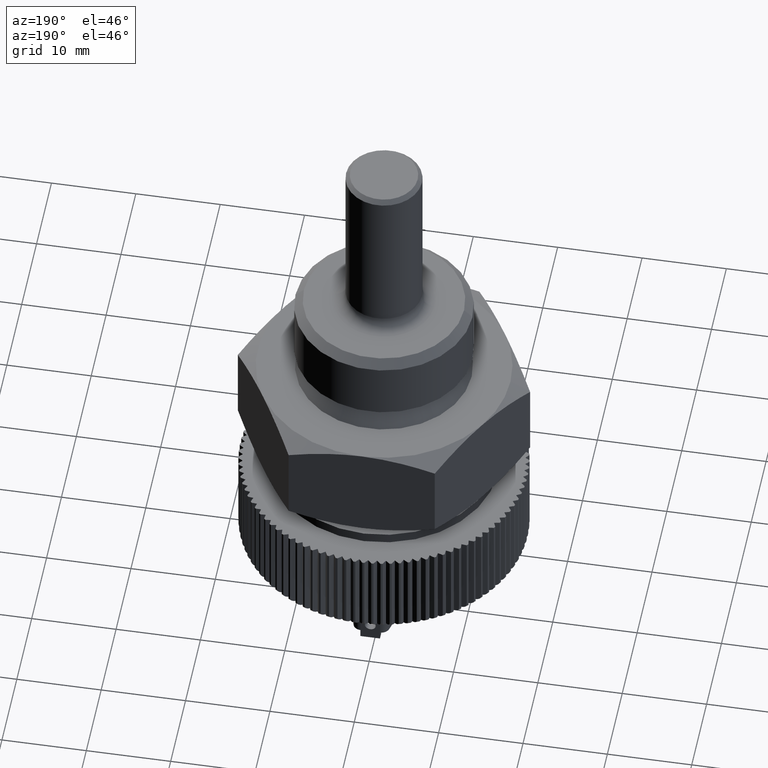
[diagram: clean part render]
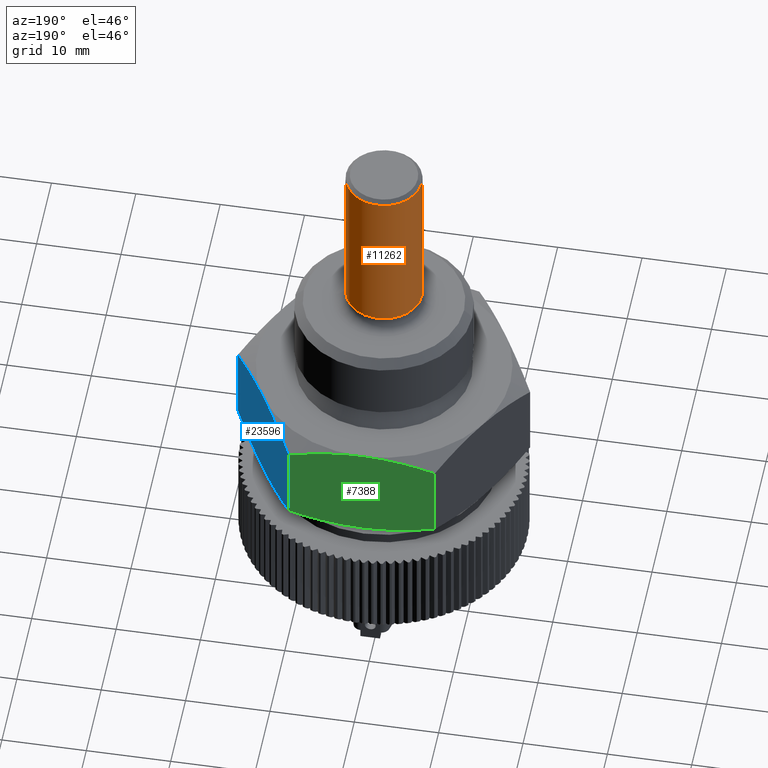
[diagram: same view with three faces highlighted in distinct colors, each labeled with its STEP entity id]
A machine part, auxiliary view with three faces highlighted in distinct colors.
Their STEP definitions:

[orange] entity #11262 — the highlighted cylindrical surface (partial cylindrical patch) has radius 4.5 mm, axis along (-0, -0, 1).
#998 = DIRECTION ( 'NONE',  ( -0.0000000000000000000, -0.0000000000000000000, 1.000000000000000000 ) ) ;
#3238 = DIRECTION ( 'NONE',  ( -0.0000000000000000000, -0.0000000000000000000, 1.000000000000000000 ) ) ;
#3300 = VERTEX_POINT ( 'NONE', #24656 ) ;
#3536 = DIRECTION ( 'NONE',  ( 0.0000000000000000000, 0.0000000000000000000, -1.000000000000000000 ) ) ;
#3890 = ORIENTED_EDGE ( 'NONE', *, *, #8098, .F. ) ;
#7951 = CYLINDRICAL_SURFACE ( 'NONE', #30838, 4.500000000000000888 ) ;
#8098 = EDGE_CURVE ( 'NONE', #30376, #8715, #8416, .T. ) ;
#8155 = ORIENTED_EDGE ( 'NONE', *, *, #18407, .T. ) ;
#8416 = LINE ( 'NONE', #13999, #32135 ) ;
#8431 = AXIS2_PLACEMENT_3D ( 'NONE', #26323, #13055, #15826 ) ;
#8715 = VERTEX_POINT ( 'NONE', #23951 ) ;
#9145 = CARTESIAN_POINT ( 'NONE',  ( 0.0000000000000000000, 0.0000000000000000000, 0.0000000000000000000 ) ) ;
#9388 = ORIENTED_EDGE ( 'NONE', *, *, #23651, .T. ) ;
#10593 = DIRECTION ( 'NONE',  ( -0.0000000000000000000, -0.0000000000000000000, 1.000000000000000000 ) ) ;
#11042 = EDGE_LOOP ( 'NONE', ( #9388, #8155, #30794, #3890 ) ) ;
#11262 = ADVANCED_FACE ( 'NONE', ( #31824 ), #7951, .T. ) ;
#12346 = VECTOR ( 'NONE', #10593, 1000.000000000000000 ) ;
#13055 = DIRECTION ( 'NONE',  ( -0.0000000000000000000, -0.0000000000000000000, 1.000000000000000000 ) ) ;
#13999 = CARTESIAN_POINT ( 'NONE',  ( 4.500000000000000888, 0.0000000000000000000, 0.0000000000000000000 ) ) ;
#15826 = DIRECTION ( 'NONE',  ( -1.000000000000000000, 0.0000000000000000000, 0.0000000000000000000 ) ) ;
#16899 = AXIS2_PLACEMENT_3D ( 'NONE', #30161, #3536, #33555 ) ;
#18407 = EDGE_CURVE ( 'NONE', #3300, #30653, #29245, .T. ) ;
#20760 = CIRCLE ( 'NONE', #16899, 4.500000000000000888 ) ;
#23449 = CIRCLE ( 'NONE', #8431, 4.500000000000000888 ) ;
#23651 = EDGE_CURVE ( 'NONE', #30376, #3300, #23449, .T. ) ;
#23951 = CARTESIAN_POINT ( 'NONE',  ( 4.500000000000000888, 5.510910596163090542E-16, 31.50000000000000711 ) ) ;
#24656 = CARTESIAN_POINT ( 'NONE',  ( -4.500000000000000888, 5.510910596163089556E-16, 12.50000000000000000 ) ) ;
#26323 = CARTESIAN_POINT ( 'NONE',  ( 0.0000000000000000000, 0.0000000000000000000, 12.50000000000000000 ) ) ;
#27635 = CARTESIAN_POINT ( 'NONE',  ( -4.500000000000000888, 5.510910596163089556E-16, 0.0000000000000000000 ) ) ;
#28082 = CARTESIAN_POINT ( 'NONE',  ( 4.500000000000000888, 0.0000000000000000000, 12.50000000000000000 ) ) ;
#29245 = LINE ( 'NONE', #27635, #12346 ) ;
#29661 = EDGE_CURVE ( 'NONE', #30653, #8715, #20760, .T. ) ;
#30161 = CARTESIAN_POINT ( 'NONE',  ( 0.0000000000000000000, 0.0000000000000000000, 31.50000000000000711 ) ) ;
#30198 = CARTESIAN_POINT ( 'NONE',  ( -4.500000000000000888, 0.0000000000000000000, 31.50000000000000711 ) ) ;
#30240 = DIRECTION ( 'NONE',  ( 1.000000000000000000, 0.0000000000000000000, 0.0000000000000000000 ) ) ;
#30376 = VERTEX_POINT ( 'NONE', #28082 ) ;
#30653 = VERTEX_POINT ( 'NONE', #30198 ) ;
#30794 = ORIENTED_EDGE ( 'NONE', *, *, #29661, .T. ) ;
#30838 = AXIS2_PLACEMENT_3D ( 'NONE', #9145, #998, #30240 ) ;
#31824 = FACE_OUTER_BOUND ( 'NONE', #11042, .T. ) ;
#32135 = VECTOR ( 'NONE', #3238, 1000.000000000000000 ) ;
#33555 = DIRECTION ( 'NONE',  ( 1.000000000000000000, 0.0000000000000000000, 0.0000000000000000000 ) ) ;

[blue] entity #23596 — the highlighted planar face has unit normal (0.866, 0.5, -0).
#50 = DIRECTION ( 'NONE',  ( -0.5000000000000003331, 0.8660254037844384856, 0.0000000000000000000 ) ) ;
#293 = CARTESIAN_POINT ( 'NONE',  ( 12.99038105676657473, 7.500000000000003553, -12.00000000000000178 ) ) ;
#420 = VECTOR ( 'NONE', #436, 1000.000000000000000 ) ;
#436 = DIRECTION ( 'NONE',  ( 0.0000000000000000000, 0.0000000000000000000, 1.000000000000000000 ) ) ;
#540 = DIRECTION ( 'NONE',  ( 0.8660254037844384856, 0.5000000000000003331, -0.0000000000000000000 ) ) ;
#561 = EDGE_CURVE ( 'NONE', #13618, #11846, #27135, .T. ) ;
#780 = CARTESIAN_POINT ( 'NONE',  ( 10.07931531348310727, 12.54211377154021889, -11.40496726926197368 ) ) ;
#1277 = B_SPLINE_CURVE_WITH_KNOTS ( 'NONE', 3,
 ( #4304, #14885, #25524, #2716, #15565, #293 ),
 .UNSPECIFIED., .F., .F.,
 ( 4, 2, 4 ),
 ( 2.380728851881346700E-07, 0.004381617344479428466, 0.008762996616073669837 ),
 .UNSPECIFIED. ) ;
#1645 = CARTESIAN_POINT ( 'NONE',  ( 8.660254037844376640, 15.00000000000000355, -1.339745962155602488 ) ) ;
#2716 = CARTESIAN_POINT ( 'NONE',  ( 14.45666067663406373, 4.960329200286731854, -11.87231511594120370 ) ) ;
#3044 = LINE ( 'NONE', #13637, #420 ) ;
#3159 = CARTESIAN_POINT ( 'NONE',  ( 17.32050807568877460, -3.467220923852814603E-15, -21.00000000000000000 ) ) ;
#3391 = CARTESIAN_POINT ( 'NONE',  ( 12.62289781509837105, 8.136499645499435829, -12.00000000000001243 ) ) ;
#4065 = ORIENTED_EDGE ( 'NONE', *, *, #14032, .T. ) ;
#4304 = CARTESIAN_POINT ( 'NONE',  ( 17.32050807568877460, -3.518396117943697230E-15, -10.66025403784440506 ) ) ;
#5821 = CARTESIAN_POINT ( 'NONE',  ( 8.660254037844378416, 15.00000000000000355, -10.66025403784440684 ) ) ;
#5971 = CARTESIAN_POINT ( 'NONE',  ( 8.660254037844376640, 15.00000000000000355, -1.339745962155602488 ) ) ;
#6660 = EDGE_LOOP ( 'NONE', ( #30791, #17007, #9876, #14820, #4065, #22577 ) ) ;
#7888 = CARTESIAN_POINT ( 'NONE',  ( 17.32050807568877460, -3.380393913260085011E-15, -1.339745962155604042 ) ) ;
#7941 = CARTESIAN_POINT ( 'NONE',  ( 16.61392498976816867, 1.223837804583287614, -0.9318000272943880447 ) ) ;
#8120 = CARTESIAN_POINT ( 'NONE',  ( 13.72699645679777447, 6.224144701508286914, -0.03166655019042406705 ) ) ;
#9110 = EDGE_CURVE ( 'NONE', #29668, #18566, #3044, .T. ) ;
#9876 = ORIENTED_EDGE ( 'NONE', *, *, #31840, .T. ) ;
#10568 = CARTESIAN_POINT ( 'NONE',  ( 14.45721671389627438, 4.959366115497688021, -0.1542126489148691604 ) ) ;
#10946 = VERTEX_POINT ( 'NONE', #15357 ) ;
#11225 = CARTESIAN_POINT ( 'NONE',  ( 12.99038105676657473, 7.500000000000003553, -12.00000000000000178 ) ) ;
#11846 = VERTEX_POINT ( 'NONE', #30168 ) ;
#13427 = CARTESIAN_POINT ( 'NONE',  ( 11.52410143689908573, 10.03967079971327081, -0.1276848840588025169 ) ) ;
#13618 = VERTEX_POINT ( 'NONE', #33720 ) ;
#13637 = CARTESIAN_POINT ( 'NONE',  ( 17.32050807568877460, -3.467220923852814603E-15, -21.00000000000000000 ) ) ;
#13787 = CARTESIAN_POINT ( 'NONE',  ( 12.99038105676657651, 7.500000000000004441, -6.938893903907228378E-15 ) ) ;
#14032 = EDGE_CURVE ( 'NONE', #29668, #13618, #1277, .T. ) ;
#14820 = ORIENTED_EDGE ( 'NONE', *, *, #9110, .F. ) ;
#14885 = CARTESIAN_POINT ( 'NONE',  ( 16.61215595149307589, 1.226901868756277825, -11.06922132743006948 ) ) ;
#15357 = CARTESIAN_POINT ( 'NONE',  ( 12.99038105676657651, 7.500000000000004441, -6.938893903907228378E-15 ) ) ;
#15565 = CARTESIAN_POINT ( 'NONE',  ( 13.72810618242296243, 6.222222600343004117, -12.00000000000001066 ) ) ;
#16003 = FACE_OUTER_BOUND ( 'NONE', #6660, .T. ) ;
#17007 = ORIENTED_EDGE ( 'NONE', *, *, #32033, .T. ) ;
#18275 = PLANE ( 'NONE',  #31808 ) ;
#18535 = CARTESIAN_POINT ( 'NONE',  ( 17.32050807568877460, -3.380393913260085011E-15, -1.339745962155604042 ) ) ;
#18566 = VERTEX_POINT ( 'NONE', #7888 ) ;
#18970 = CARTESIAN_POINT ( 'NONE',  ( 9.368606162040075347, 13.77309813124372084, -0.9307786725699370711 ) ) ;
#19288 = DIRECTION ( 'NONE',  ( 0.0000000000000000000, 0.0000000000000000000, 1.000000000000000000 ) ) ;
#21237 = VECTOR ( 'NONE', #19288, 1000.000000000000000 ) ;
#21324 = CARTESIAN_POINT ( 'NONE',  ( 12.99038105676657651, 7.500000000000004441, -6.938893903907228378E-15 ) ) ;
#21606 = CARTESIAN_POINT ( 'NONE',  ( 10.08213230481557332, 12.53723459942791330, -0.5938504749946935668 ) ) ;
#21687 = CARTESIAN_POINT ( 'NONE',  ( 14.81988455483893929, 4.331206988713675266, -0.2449743573670526975 ) ) ;
#22577 = ORIENTED_EDGE ( 'NONE', *, *, #561, .T. ) ;
#23206 = B_SPLINE_CURVE_WITH_KNOTS ( 'NONE', 3,
 ( #5971, #18970, #21606, #13427, #29305, #13787 ),
 .UNSPECIFIED., .F., .F.,
 ( 4, 2, 4 ),
 ( 2.380728851880050211E-07, 0.004381617344479424997, 0.008762996616073662898 ),
 .UNSPECIFIED. ) ;
#23596 = ADVANCED_FACE ( 'NONE', ( #16003 ), #18275, .T. ) ;
#23704 = EDGE_CURVE ( 'NONE', #11846, #25606, #27199, .T. ) ;
#25524 = CARTESIAN_POINT ( 'NONE',  ( 15.89862980871757969, 2.462765400572088037, -11.40614952500531842 ) ) ;
#25606 = VERTEX_POINT ( 'NONE', #1645 ) ;
#27135 = B_SPLINE_CURVE_WITH_KNOTS ( 'NONE', 3,
 ( #11225, #3391, #33114, #32770, #27601, #780, #29671, #5821 ),
 .UNSPECIFIED., .F., .F.,
 ( 4, 2, 2, 4 ),
 ( 0.008762996616073669837, 0.01094549440787755817, 0.01312799219968144478, 0.01749298778328922319 ),
 .UNSPECIFIED. ) ;
#27199 = LINE ( 'NONE', #27880, #21237 ) ;
#27601 = CARTESIAN_POINT ( 'NONE',  ( 11.16087755869420839, 10.66879301128632740, -11.75502564263295646 ) ) ;
#27880 = CARTESIAN_POINT ( 'NONE',  ( 8.660254037844378416, 15.00000000000000355, -21.00000000000000000 ) ) ;
#29305 = CARTESIAN_POINT ( 'NONE',  ( 12.25265593111018347, 8.777777399657002988, 4.662069341687669066E-15 ) ) ;
#29668 = VERTEX_POINT ( 'NONE', #32568 ) ;
#29671 = CARTESIAN_POINT ( 'NONE',  ( 9.366837123764986117, 13.77616219541671327, -11.06819997270562617 ) ) ;
#30168 = CARTESIAN_POINT ( 'NONE',  ( 8.660254037844378416, 15.00000000000000355, -10.66025403784440684 ) ) ;
#30791 = ORIENTED_EDGE ( 'NONE', *, *, #23704, .T. ) ;
#31808 = AXIS2_PLACEMENT_3D ( 'NONE', #3159, #540, #50 ) ;
#31815 = CARTESIAN_POINT ( 'NONE',  ( 15.90144680005004396, 2.457886228459777112, -0.5950327307380338659 ) ) ;
#31840 = EDGE_CURVE ( 'NONE', #10946, #18566, #33987, .T. ) ;
#31986 = CARTESIAN_POINT ( 'NONE',  ( 13.35786429843477308, 6.863500354500568612, 4.943707796649723929E-15 ) ) ;
#32033 = EDGE_CURVE ( 'NONE', #25606, #10946, #23206, .T. ) ;
#32568 = CARTESIAN_POINT ( 'NONE',  ( 17.32050807568877460, -3.518396117943697230E-15, -10.66025403784440506 ) ) ;
#32770 = CARTESIAN_POINT ( 'NONE',  ( 11.52354539963687152, 10.04063388450231287, -11.84578735108513392 ) ) ;
#33114 = CARTESIAN_POINT ( 'NONE',  ( 12.25376565673537499, 8.775855298491714862, -11.96833344980958280 ) ) ;
#33720 = CARTESIAN_POINT ( 'NONE',  ( 12.99038105676657473, 7.500000000000003553, -12.00000000000000178 ) ) ;
#33987 = B_SPLINE_CURVE_WITH_KNOTS ( 'NONE', 3,
 ( #21324, #31986, #8120, #10568, #21687, #31815, #7941, #18535 ),
 .UNSPECIFIED., .F., .F.,
 ( 4, 2, 2, 4 ),
 ( 0.008762996616073662898, 0.01094549440787755470, 0.01312799219968144651, 0.01749298778328922666 ),
 .UNSPECIFIED. ) ;

[green] entity #7388 — the highlighted planar face has unit normal (0, 1, -0).
#131 = CARTESIAN_POINT ( 'NONE',  ( 0.7327849330704041542, 15.00000000000000355, -12.00000000000000000 ) ) ;
#1062 = ORIENTED_EDGE ( 'NONE', *, *, #6328, .T. ) ;
#1303 = ORIENTED_EDGE ( 'NONE', *, *, #6618, .T. ) ;
#1440 = PLANE ( 'NONE',  #17485 ) ;
#1645 = CARTESIAN_POINT ( 'NONE',  ( 8.660254037844376640, 15.00000000000000355, -1.339745962155602488 ) ) ;
#2462 = CARTESIAN_POINT ( 'NONE',  ( 1.468777304909761217, 15.00000000000000533, -0.03121869687204889554 ) ) ;
#3195 = VECTOR ( 'NONE', #6159, 1000.000000000000000 ) ;
#3249 = CARTESIAN_POINT ( 'NONE',  ( 1.468777263762286234, 15.00000000000000533, -11.96878130573020904 ) ) ;
#4724 = CARTESIAN_POINT ( 'NONE',  ( 0.0000000000000000000, 15.00000000000000355, -6.938893903907228378E-15 ) ) ;
#4825 = EDGE_LOOP ( 'NONE', ( #11428, #1062, #21398, #24096, #1303, #22885 ) ) ;
#5040 = VERTEX_POINT ( 'NONE', #24446 ) ;
#5056 = CARTESIAN_POINT ( 'NONE',  ( 2.943530822614901510, 15.00000000000000178, -0.1551143951296144186 ) ) ;
#5456 = EDGE_CURVE ( 'NONE', #23933, #25606, #16223, .T. ) ;
#5472 = VERTEX_POINT ( 'NONE', #17730 ) ;
#5837 = CARTESIAN_POINT ( 'NONE',  ( 3.673024203883032524, 15.00000000000000533, -11.75313910322805633 ) ) ;
#6159 = DIRECTION ( 'NONE',  ( 0.0000000000000000000, 0.0000000000000000000, 1.000000000000000000 ) ) ;
#6328 = EDGE_CURVE ( 'NONE', #5040, #23933, #15776, .T. ) ;
#6347 = CARTESIAN_POINT ( 'NONE',  ( -2.918522942042186319, 15.00000000000000533, -11.87403905816663929 ) ) ;
#6618 = EDGE_CURVE ( 'NONE', #11846, #7981, #18663, .T. ) ;
#7388 = ADVANCED_FACE ( 'NONE', ( #14485 ), #1440, .T. ) ;
#7981 = VERTEX_POINT ( 'NONE', #14883 ) ;
#8837 = CARTESIAN_POINT ( 'NONE',  ( -7.250635419152365202, 15.00000000000000178, -0.9328241176773366394 ) ) ;
#9084 = DIRECTION ( 'NONE',  ( 0.0000000000000000000, 0.0000000000000000000, 1.000000000000000000 ) ) ;
#9605 = DIRECTION ( 'NONE',  ( 0.0000000000000000000, 1.000000000000000000, -0.0000000000000000000 ) ) ;
#10538 = CARTESIAN_POINT ( 'NONE',  ( 0.0000000000000000000, 14.99999999999999822, -12.00000000000000178 ) ) ;
#11246 = CARTESIAN_POINT ( 'NONE',  ( 8.660254037844378416, 15.00000000000000355, -10.66025403784440684 ) ) ;
#11428 = ORIENTED_EDGE ( 'NONE', *, *, #33181, .T. ) ;
#11846 = VERTEX_POINT ( 'NONE', #30168 ) ;
#12474 = B_SPLINE_CURVE_WITH_KNOTS ( 'NONE', 3,
 ( #30353, #30191, #6347, #22160, #21644, #22336 ),
 .UNSPECIFIED., .F., .F.,
 ( 4, 2, 4 ),
 ( 0.04805111994888740939, 0.05243614737820184724, 0.05682117480751629202 ),
 .UNSPECIFIED. ) ;
#13323 = EDGE_CURVE ( 'NONE', #7981, #5472, #12474, .T. ) ;
#14303 = CARTESIAN_POINT ( 'NONE',  ( -8.660254037844387298, 15.00000000000000355, -21.00000000000000000 ) ) ;
#14413 = CARTESIAN_POINT ( 'NONE',  ( -1.464552052805527804, 15.00000000000000355, -9.337691210531406938E-15 ) ) ;
#14485 = FACE_OUTER_BOUND ( 'NONE', #4825, .T. ) ;
#14883 = CARTESIAN_POINT ( 'NONE',  ( 0.0000000000000000000, 14.99999999999999822, -12.00000000000000178 ) ) ;
#15776 = B_SPLINE_CURVE_WITH_KNOTS ( 'NONE', 3,
 ( #20130, #8837, #17505, #30116, #14413, #25059 ),
 .UNSPECIFIED., .F., .F.,
 ( 4, 2, 4 ),
 ( 0.01582959122213827702, 0.02021199490640582935, 0.02459439859067338169 ),
 .UNSPECIFIED. ) ;
#16223 = B_SPLINE_CURVE_WITH_KNOTS ( 'NONE', 3,
 ( #4724, #21033, #2462, #5056, #33597, #25619, #20341, #23663 ),
 .UNSPECIFIED., .F., .F.,
 ( 4, 2, 2, 4 ),
 ( 0.02459439859067338169, 0.02678712326627866874, 0.02897984794188395927, 0.03336529729309453685 ),
 .UNSPECIFIED. ) ;
#17485 = AXIS2_PLACEMENT_3D ( 'NONE', #32947, #9605, #9084 ) ;
#17505 = CARTESIAN_POINT ( 'NONE',  ( -5.808477077871346594, 15.00000000000000533, -0.5920132668832719380 ) ) ;
#17730 = CARTESIAN_POINT ( 'NONE',  ( -8.660254037844387298, 15.00000000000000355, -10.66025403784440506 ) ) ;
#18663 = B_SPLINE_CURVE_WITH_KNOTS ( 'NONE', 3,
 ( #11246, #19022, #29687, #5837, #23764, #3249, #131, #10538 ),
 .UNSPECIFIED., .F., .F.,
 ( 4, 2, 2, 4 ),
 ( 0.03927497012072272975, 0.04366304503480507304, 0.04585708249184623775, 0.04805111994888740939 ),
 .UNSPECIFIED. ) ;
#19022 = CARTESIAN_POINT ( 'NONE',  ( 7.259685190696271384, 15.00000000000000533, -11.06456343830418376 ) ) ;
#19288 = DIRECTION ( 'NONE',  ( 0.0000000000000000000, 0.0000000000000000000, 1.000000000000000000 ) ) ;
#20130 = CARTESIAN_POINT ( 'NONE',  ( -8.660254037844387298, 15.00000000000000355, -1.339745962155603820 ) ) ;
#20341 = CARTESIAN_POINT ( 'NONE',  ( 7.259685187187042921, 15.00000000000000355, -0.9354365606827981239 ) ) ;
#21033 = CARTESIAN_POINT ( 'NONE',  ( 0.7327849409271791625, 15.00000000000000178, -9.216565499074038834E-15 ) ) ;
#21237 = VECTOR ( 'NONE', #19288, 1000.000000000000000 ) ;
#21398 = ORIENTED_EDGE ( 'NONE', *, *, #5456, .T. ) ;
#21644 = CARTESIAN_POINT ( 'NONE',  ( -7.250635432013894821, 15.00000000000000355, -11.06717587860986995 ) ) ;
#22160 = CARTESIAN_POINT ( 'NONE',  ( -5.808477082507367939, 15.00000000000000533, -11.40798673261720531 ) ) ;
#22336 = CARTESIAN_POINT ( 'NONE',  ( -8.660254037844387298, 15.00000000000000355, -10.66025403784440506 ) ) ;
#22885 = ORIENTED_EDGE ( 'NONE', *, *, #13323, .T. ) ;
#23663 = CARTESIAN_POINT ( 'NONE',  ( 8.660254037844376640, 15.00000000000000355, -1.339745962155602488 ) ) ;
#23704 = EDGE_CURVE ( 'NONE', #11846, #25606, #27199, .T. ) ;
#23764 = CARTESIAN_POINT ( 'NONE',  ( 2.943530801575985123, 15.00000000000000355, -11.84488560749249686 ) ) ;
#23933 = VERTEX_POINT ( 'NONE', #29397 ) ;
#24096 = ORIENTED_EDGE ( 'NONE', *, *, #23704, .F. ) ;
#24446 = CARTESIAN_POINT ( 'NONE',  ( -8.660254037844387298, 15.00000000000000355, -1.339745962155603820 ) ) ;
#25059 = CARTESIAN_POINT ( 'NONE',  ( 0.0000000000000000000, 15.00000000000000355, -6.938893903907228378E-15 ) ) ;
#25606 = VERTEX_POINT ( 'NONE', #1645 ) ;
#25619 = CARTESIAN_POINT ( 'NONE',  ( 5.841188575272886041, 15.00000000000000533, -0.5988930483679788530 ) ) ;
#27199 = LINE ( 'NONE', #27880, #21237 ) ;
#27880 = CARTESIAN_POINT ( 'NONE',  ( 8.660254037844378416, 15.00000000000000355, -21.00000000000000000 ) ) ;
#29397 = CARTESIAN_POINT ( 'NONE',  ( 0.0000000000000000000, 15.00000000000000355, -6.938893903907228378E-15 ) ) ;
#29687 = CARTESIAN_POINT ( 'NONE',  ( 5.841188577089065248, 15.00000000000000178, -11.40110695175599176 ) ) ;
#30116 = CARTESIAN_POINT ( 'NONE',  ( -2.918522956756150144, 15.00000000000000533, -0.1259609439581369505 ) ) ;
#30168 = CARTESIAN_POINT ( 'NONE',  ( 8.660254037844378416, 15.00000000000000355, -10.66025403784440684 ) ) ;
#30191 = CARTESIAN_POINT ( 'NONE',  ( -1.464552038977225745, 15.00000000000000178, -11.99999999999999467 ) ) ;
#30353 = CARTESIAN_POINT ( 'NONE',  ( 0.0000000000000000000, 14.99999999999999822, -12.00000000000000178 ) ) ;
#32410 = LINE ( 'NONE', #14303, #3195 ) ;
#32947 = CARTESIAN_POINT ( 'NONE',  ( 8.660254037844378416, 15.00000000000000355, -21.00000000000000000 ) ) ;
#33181 = EDGE_CURVE ( 'NONE', #5472, #5040, #32410, .T. ) ;
#33597 = CARTESIAN_POINT ( 'NONE',  ( 3.673024217569212713, 15.00000000000000178, -0.2468608987846783731 ) ) ;